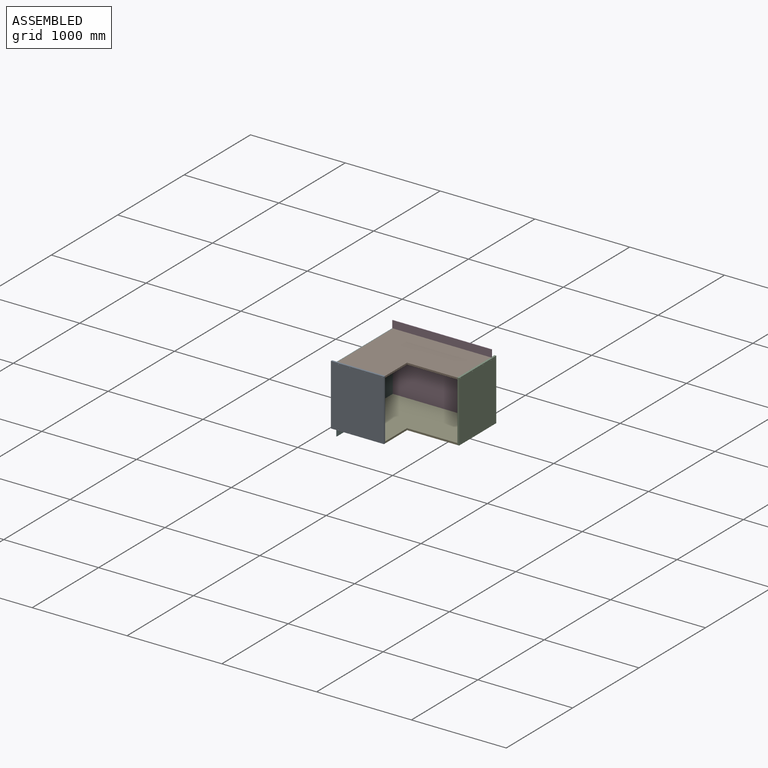
[diagram: assembled view]
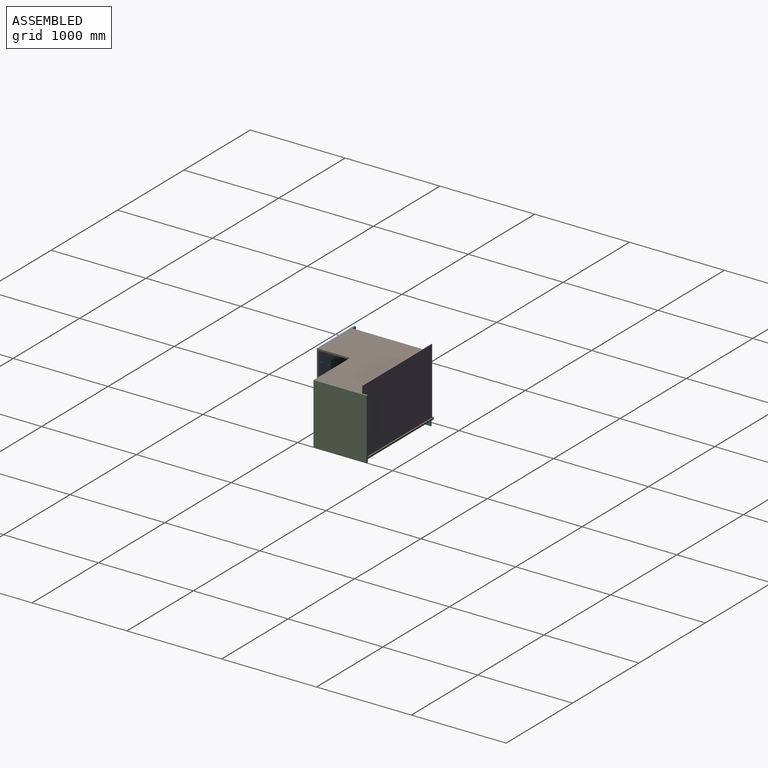
[diagram: assembled view, second angle]
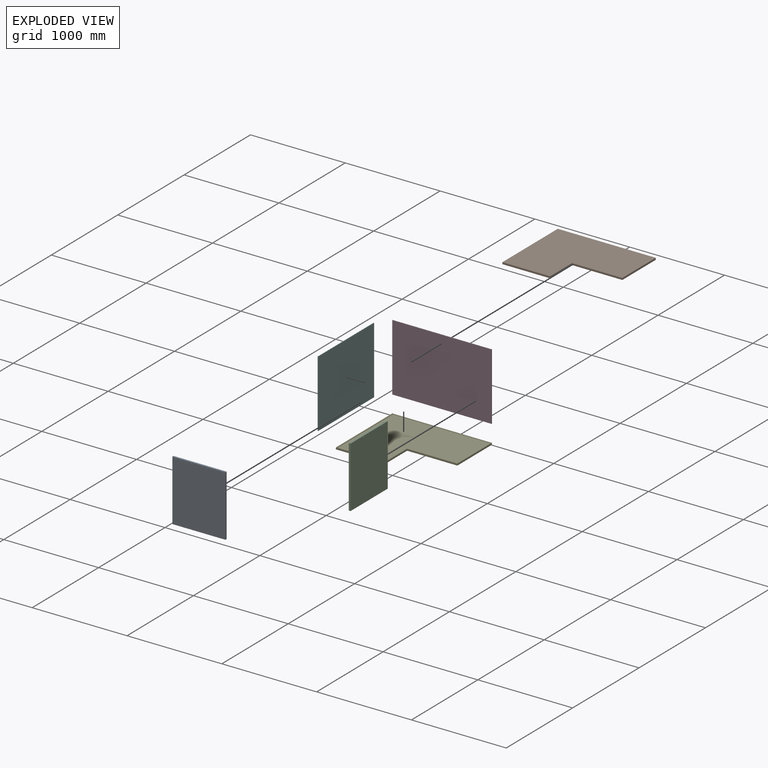
[diagram: exploded view]
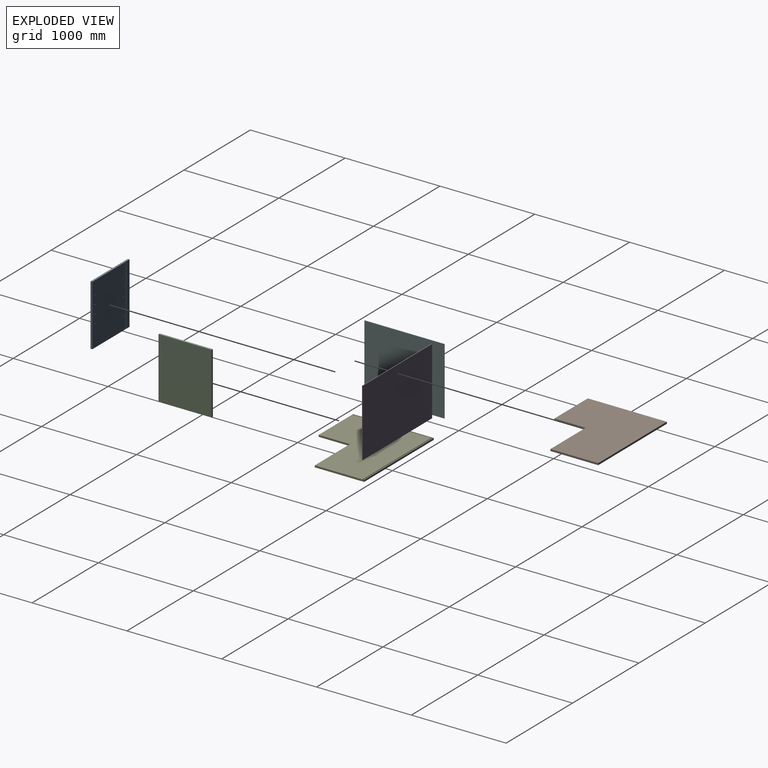
[diagram: exploded view, second angle]
ASSEMBLY  parts=6 mates=15
PART A: 46 faces, bbox 19x560x643 mm
  f0: plane 643x50mm, normal (-1,0,0), area 32150mm2, adj f1,f3,f4,f23
  f1: plane 560x19mm, normal (0,0,1), area 10592mm2, adj f0,f2,f4,f5,f6,f23,f24,f25
  f2: plane 643x19mm, normal (0,-1,0), area 12217mm2, adj f1,f3,f5,f6
  f3: plane 560x19mm, normal (0,0,-1), area 10592mm2, adj f0,f2,f4,f5,f6,f23,f24,f25
  f4: plane 643x19mm, normal (0,1,0), area 12217mm2, adj f0,f1,f3,f5
  f5: plane 643x560mm, normal (1,0,0), area 359575.6mm2, adj f1,f2,f3,f4,f8,f10,f12,f14
  f6: plane 643x504mm, normal (-1,0,0), area 323442.1mm2, adj f1,f2,f3,f7,f9,f11,f13,f15
  f7: cylinder r=2.25mm len=16.77mm, axis (1,0,0), area 237.1mm2, adj f6,f8
  f8: cone r=2.25mm half-angle=45deg, axis (1,0,0), area 66.7mm2, adj f5,f7
  f9: cylinder r=2.25mm len=16.77mm, axis (1,0,0), area 237.1mm2, adj f6,f10
  f10: cone r=2.25mm half-angle=45deg, axis (1,0,0), area 66.7mm2, adj f5,f9
  f11: cylinder r=2.25mm len=16.77mm, axis (1,0,0), area 237.1mm2, adj f6,f12
  f12: cone r=2.25mm half-angle=45deg, axis (1,0,0), area 66.7mm2, adj f5,f11
  f13: cylinder r=2.25mm len=16.77mm, axis (1,0,0), area 237.1mm2, adj f6,f14
  f14: cone r=2.25mm half-angle=45deg, axis (1,0,0), area 66.7mm2, adj f5,f13
  f15: cylinder r=2.25mm len=16.77mm, axis (1,0,0), area 237.1mm2, adj f6,f16
  f16: cone r=2.25mm half-angle=45deg, axis (1,0,0), area 66.7mm2, adj f5,f15
  f17: cylinder r=2.25mm len=16.77mm, axis (1,0,0), area 237.1mm2, adj f6,f18
  f18: cone r=2.25mm half-angle=45deg, axis (1,0,0), area 66.7mm2, adj f5,f17
  f19: cylinder r=2.25mm len=16.77mm, axis (1,0,0), area 237.1mm2, adj f6,f20
  f20: cone r=2.25mm half-angle=45deg, axis (1,0,0), area 66.7mm2, adj f5,f19
  f21: cylinder r=2.25mm len=16.77mm, axis (1,0,0), area 237.1mm2, adj f6,f22
  f22: cone r=2.25mm half-angle=45deg, axis (1,0,0), area 66.7mm2, adj f5,f21
  f23: plane 643x8mm, normal (0,-1,0), area 5144mm2, adj f0,f1,f3,f25
  f24: plane 643x8mm, normal (0,1,0), area 5144mm2, adj f1,f3,f6,f25
  f25: plane 643x6mm, normal (-1,0,0), area 3858mm2, adj f1,f3,f23,f24
  f26: cone r=0mm half-angle=59deg, axis (-1,0,0), area 58.6mm2, adj f27
  f27: cylinder r=4mm len=12mm, axis (-1,0,0), area 301.6mm2, adj f6,f26
  f28: cone r=0mm half-angle=59deg, axis (-1,0,0), area 58.6mm2, adj f29
  f29: cylinder r=4mm len=12mm, axis (-1,0,0), area 301.6mm2, adj f6,f28
  f30: cone r=0mm half-angle=59deg, axis (-1,0,0), area 58.6mm2, adj f31
  f31: cylinder r=4mm len=12mm, axis (-1,0,0), area 301.6mm2, adj f6,f30
  f32: cone r=0mm half-angle=59deg, axis (-1,0,0), area 58.6mm2, adj f33
  f33: cylinder r=4mm len=12mm, axis (-1,0,0), area 301.6mm2, adj f6,f32
  f34: cone r=0mm half-angle=59deg, axis (-1,0,0), area 58.6mm2, adj f35
  f35: cylinder r=4mm len=12mm, axis (-1,0,0), area 301.6mm2, adj f6,f34
  f36: cone r=0mm half-angle=59deg, axis (-1,0,0), area 58.6mm2, adj f37
  f37: cylinder r=4mm len=12mm, axis (-1,0,0), area 301.6mm2, adj f6,f36
  f38: cone r=0mm half-angle=59deg, axis (-1,0,0), area 58.6mm2, adj f39
  f39: cylinder r=4mm len=12mm, axis (-1,0,0), area 301.6mm2, adj f6,f38
  f40: cone r=0mm half-angle=59deg, axis (-1,0,0), area 58.6mm2, adj f41
  f41: cylinder r=4mm len=12mm, axis (-1,0,0), area 301.6mm2, adj f6,f40
  f42: cone r=0mm half-angle=59deg, axis (-1,0,0), area 58.6mm2, adj f43
  f43: cylinder r=4mm len=12mm, axis (-1,0,0), area 301.6mm2, adj f6,f42
  f44: cone r=0mm half-angle=59deg, axis (-1,0,0), area 58.6mm2, adj f45
  f45: cylinder r=4mm len=12mm, axis (-1,0,0), area 301.6mm2, adj f6,f44
PART B: 8 faces, bbox 1034x834x19 mm
  f0: plane 1034x19mm, normal (0,1,0), area 19646mm2, adj f1,f5,f6,f7
  f1: plane 834x19mm, normal (-1,0,0), area 15846mm2, adj f0,f2,f6,f7
  f2: plane 504x19mm, normal (0,-1,0), area 9576mm2, adj f1,f3,f6,f7
  f3: plane 330x19mm, normal (1,0,0), area 6270mm2, adj f2,f4,f6,f7
  f4: plane 530x19mm, normal (0,-1,0), area 10070mm2, adj f3,f5,f6,f7
  f5: plane 504x19mm, normal (1,0,0), area 9576mm2, adj f0,f4,f6,f7
  f6: plane 1034x834mm, normal (0,0,1), area 687456mm2, adj f0,f1,f2,f3,f4,f5
  f7: plane 1034x834mm, normal (0,0,-1), area 687456mm2, adj f0,f1,f2,f3,f4,f5
PART C: same geometry as A
PART D: 6 faces, bbox 1048x6x709 mm
  f0: plane 1048x6mm, normal (0,0,-1), area 6288mm2, adj f1,f3,f4,f5
  f1: plane 709x6mm, normal (1,0,0), area 4254mm2, adj f0,f2,f4,f5
  f2: plane 1048x6mm, normal (0,0,1), area 6288mm2, adj f1,f3,f4,f5
  f3: plane 709x6mm, normal (-1,0,0), area 4254mm2, adj f0,f2,f4,f5
  f4: plane 1048x709mm, normal (0,-1,0), area 743032mm2, adj f0,f1,f2,f3
  f5: plane 1048x709mm, normal (0,1,0), area 743032mm2, adj f0,f1,f2,f3
PART E: 20 faces, bbox 1050x850x19 mm
  f0: plane 1034x834mm, normal (0,0,1), area 687456mm2, adj f4,f6,f7,f8,f14,f15
  f1: plane 1034x10mm, normal (0,0,1), area 10340mm2, adj f3,f8,f16,f17
  f2: plane 10x10mm, normal (0,0,1), area 100mm2, adj f3,f5,f11,f18
  f3: plane 1050x19mm, normal (0,1,0), area 19902mm2, adj f1,f2,f5,f8,f10,f17,f18,f19
  f4: plane 520x19mm, normal (0,-1,0), area 9832mm2, adj f0,f5,f6,f9,f10,f13,f14,f19
  f5: plane 850x19mm, normal (-1,0,0), area 16102mm2, adj f2,f3,f4,f9,f10,f11,f12,f19
  f6: plane 330x19mm, normal (1,0,0), area 6270mm2, adj f0,f4,f7,f10
  f7: plane 530x19mm, normal (0,-1,0), area 10070mm2, adj f0,f6,f8,f10
  f8: plane 520x19mm, normal (1,0,0), area 9832mm2, adj f0,f1,f3,f7,f10,f15,f16,f19
  f9: plane 834x10mm, normal (0,0,1), area 8340mm2, adj f4,f5,f12,f13
  f10: plane 1050x850mm, normal (0,0,-1), area 717600mm2, adj f3,f4,f5,f6,f7,f8
  f11: plane 10x8mm, normal (0,-1,0), area 80mm2, adj f2,f5,f18,f19
  f12: plane 10x8mm, normal (0,1,0), area 80mm2, adj f5,f9,f13,f19
  f13: plane 834x8mm, normal (1,0,0), area 6672mm2, adj f4,f9,f12,f19
  f14: plane 834x8mm, normal (-1,0,0), area 6672mm2, adj f0,f4,f15,f19
  f15: plane 1034x8mm, normal (0,1,0), area 8272mm2, adj f0,f8,f14,f19
  f16: plane 1034x8mm, normal (0,-1,0), area 8272mm2, adj f1,f8,f17,f19
  f17: plane 10x8mm, normal (-1,0,0), area 80mm2, adj f1,f3,f16,f19
  f18: plane 10x8mm, normal (1,0,0), area 80mm2, adj f2,f3,f11,f19
  f19: plane 1050x850mm, normal (0,0,1), area 11364mm2, adj f3,f4,f5,f8,f11,f12,f13,f14
PART F: 6 faces, bbox 842x6x709 mm
  f0: plane 842x6mm, normal (0,0,-1), area 5052mm2, adj f1,f3,f4,f5
  f1: plane 709x6mm, normal (1,0,0), area 4254mm2, adj f0,f2,f4,f5
  f2: plane 842x6mm, normal (0,0,1), area 5052mm2, adj f1,f3,f4,f5
  f3: plane 709x6mm, normal (-1,0,0), area 4254mm2, adj f0,f2,f4,f5
  f4: plane 842x709mm, normal (0,-1,0), area 596978mm2, adj f0,f1,f2,f3
  f5: plane 842x709mm, normal (0,1,0), area 596978mm2, adj f0,f1,f2,f3
PLACE A rot(axis=(0.71,-0.71,0),180deg) t=(843.39,112.6,633.5)mm
PLACE B t=(339.39,946.6,614.5)mm
PLACE C t=(1373.39,442.6,-9.5)mm
PLACE D t=(1381.39,952.6,1.5)mm
PLACE E t=(323.39,962.6,-9.5)mm
PLACE F rot(axis=(0,0,-1),90deg) t=(339.39,104.6,-75.5)mm
MATE planar E.f7 <-> C.f2  axis (0,-1,0) through (1108.39,442.6,0)mm
MATE planar A.f2 <-> E.f6  axis (1,0,0) through (843.39,103.1,312)mm
MATE planar D.f0 <-> E.f19  axis (0,0,-1) through (857.39,949.6,1.5)mm
MATE planar A.f1 <-> E.f10  axis (0,0,-1) through (564.42,103.07,-9.5)mm
MATE planar E.f10 <-> C.f3  axis (0,0,-1) through (785.02,600.97,-9.5)mm
MATE planar F.f5 <-> A.f24  axis (1,0,0) through (339.39,525.6,279)mm
MATE planar B.f4 <-> C.f2  axis (0,-1,0) through (1108.39,442.6,624)mm
MATE planar D.f1 <-> C.f25  axis (1,0,0) through (1381.39,949.6,356)mm
MATE planar F.f1 <-> A.f25  axis (0,-1,0) through (336.39,104.6,279)mm
MATE planar B.f6 <-> C.f1  axis (0,0,1) through (792.28,593.71,633.5)mm
MATE planar E.f8 <-> C.f6  axis (1,0,0) through (1373.39,701.39,-0.03)mm
MATE planar D.f4 <-> E.f15  axis (0,-1,0) through (857.39,946.6,356)mm
MATE planar A.f6 <-> E.f4  axis (0,1,0) through (591.4,112.6,312)mm
MATE planar F.f2 <-> A.f3  axis (0,0,1) through (336.39,525.6,633.5)mm
MATE planar B.f3 <-> A.f2  axis (1,0,0) through (843.39,277.6,624)mm
